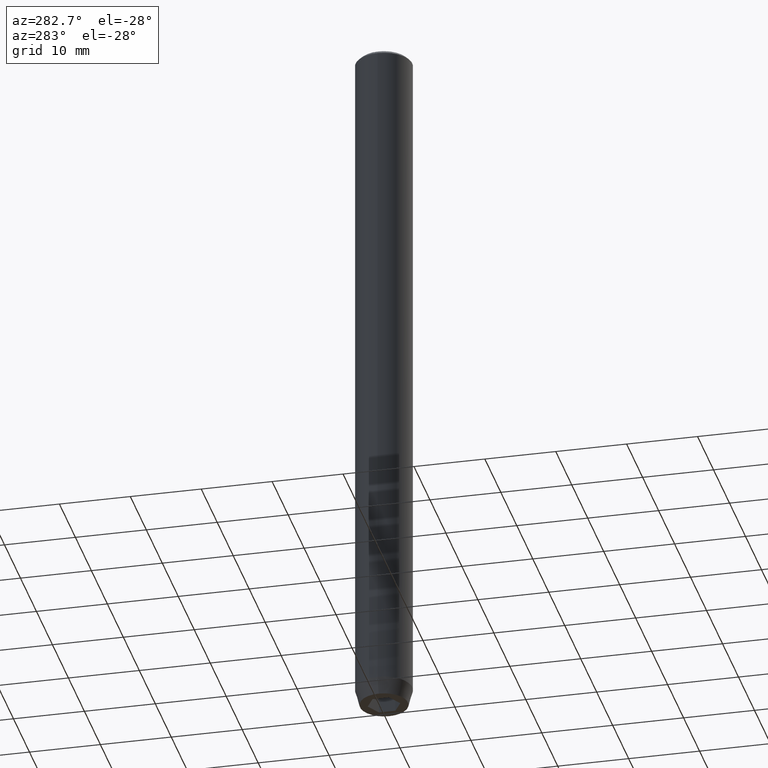
[diagram: clean part render]
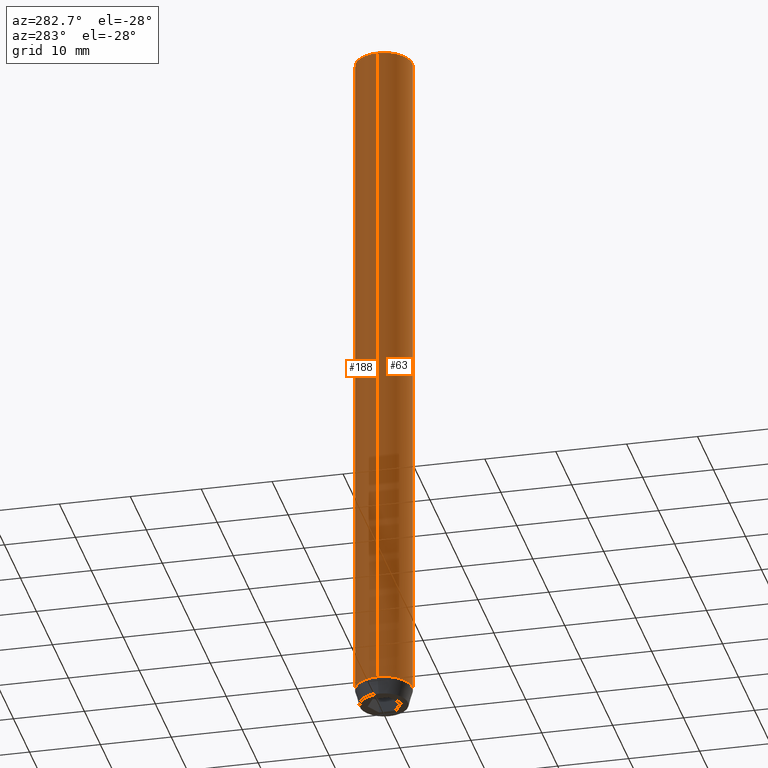
[diagram: same view with one multi-face feature highlighted, each face labeled with its STEP entity id]
A machine part, auxiliary view. The highlighted faces form ONE feature: a constant-radius fillet chain: 2 tangent blend faces with common blend radius 4 mm. The faces share edges in the B-rep.
Their STEP definitions:
[1] entity #63 (Cylinder):
#4 = EDGE_CURVE ( 'NONE', #224, #239, #467, .T. ) ;
#8 = VERTEX_POINT ( 'NONE', #33 ) ;
#14 = LINE ( 'NONE', #104, #549 ) ;
#33 = CARTESIAN_POINT ( 'NONE',  ( -4.000000000000000000, 4.898587196589412829E-16, -97.70000000000000284 ) ) ;
#48 = AXIS2_PLACEMENT_3D ( 'NONE', #159, #493, #521 ) ;
#62 = DIRECTION ( 'NONE',  ( -0.000000000000000000, -0.000000000000000000, 1.000000000000000000 ) ) ;
#63 = ADVANCED_FACE ( 'NONE', ( #163 ), #482, .T. ) ;
#71 = DIRECTION ( 'NONE',  ( -0.000000000000000000, -0.000000000000000000, 1.000000000000000000 ) ) ;
#104 = CARTESIAN_POINT ( 'NONE',  ( -4.000000000000000000, 4.898587196589412829E-16, 0.000000000000000000 ) ) ;
#142 = ORIENTED_EDGE ( 'NONE', *, *, #538, .F. ) ;
#145 = DIRECTION ( 'NONE',  ( -0.000000000000000000, -0.000000000000000000, 1.000000000000000000 ) ) ;
#155 = CARTESIAN_POINT ( 'NONE',  ( -4.000000000000000000, 4.898587196589412829E-16, -0.4999999999999970024 ) ) ;
#159 = CARTESIAN_POINT ( 'NONE',  ( 0.000000000000000000, 0.000000000000000000, -0.4999999999999970024 ) ) ;
#163 = FACE_OUTER_BOUND ( 'NONE', #416, .T. ) ;
#211 = LINE ( 'NONE', #563, #245 ) ;
#224 = VERTEX_POINT ( 'NONE', #376 ) ;
#239 = VERTEX_POINT ( 'NONE', #155 ) ;
#245 = VECTOR ( 'NONE', #252, 1000.000000000000000 ) ;
#252 = DIRECTION ( 'NONE',  ( -0.000000000000000000, -0.000000000000000000, 1.000000000000000000 ) ) ;
#254 = DIRECTION ( 'NONE',  ( 1.000000000000000000, 0.000000000000000000, 0.000000000000000000 ) ) ;
#270 = EDGE_CURVE ( 'NONE', #573, #224, #211, .T. ) ;
#290 = CIRCLE ( 'NONE', #506, 4.000000000000000000 ) ;
#328 = DIRECTION ( 'NONE',  ( 1.000000000000000000, 0.000000000000000000, 0.000000000000000000 ) ) ;
#339 = ORIENTED_EDGE ( 'NONE', *, *, #4, .T. ) ;
#359 = ORIENTED_EDGE ( 'NONE', *, *, #399, .T. ) ;
#376 = CARTESIAN_POINT ( 'NONE',  ( 4.000000000000000000, 0.000000000000000000, -0.4999999999999970024 ) ) ;
#399 = EDGE_CURVE ( 'NONE', #8, #573, #290, .T. ) ;
#416 = EDGE_LOOP ( 'NONE', ( #142, #359, #483, #339 ) ) ;
#458 = AXIS2_PLACEMENT_3D ( 'NONE', #525, #71, #254 ) ;
#467 = CIRCLE ( 'NONE', #48, 4.000000000000000000 ) ;
#482 = CYLINDRICAL_SURFACE ( 'NONE', #458, 4.000000000000000000 ) ;
#483 = ORIENTED_EDGE ( 'NONE', *, *, #270, .T. ) ;
#493 = DIRECTION ( 'NONE',  ( 0.000000000000000000, 0.000000000000000000, -1.000000000000000000 ) ) ;
#506 = AXIS2_PLACEMENT_3D ( 'NONE', #554, #145, #328 ) ;
#521 = DIRECTION ( 'NONE',  ( 1.000000000000000000, 0.000000000000000000, 0.000000000000000000 ) ) ;
#525 = CARTESIAN_POINT ( 'NONE',  ( 0.000000000000000000, 0.000000000000000000, 0.000000000000000000 ) ) ;
#538 = EDGE_CURVE ( 'NONE', #8, #239, #14, .T. ) ;
#549 = VECTOR ( 'NONE', #62, 1000.000000000000000 ) ;
#554 = CARTESIAN_POINT ( 'NONE',  ( 0.000000000000000000, 0.000000000000000000, -97.70000000000000284 ) ) ;
#563 = CARTESIAN_POINT ( 'NONE',  ( 4.000000000000000000, 0.000000000000000000, 0.000000000000000000 ) ) ;
#573 = VERTEX_POINT ( 'NONE', #574 ) ;
#574 = CARTESIAN_POINT ( 'NONE',  ( 4.000000000000000000, 0.000000000000000000, -97.70000000000000284 ) ) ;
[2] entity #188 (Cylinder):
#8 = VERTEX_POINT ( 'NONE', #33 ) ;
#14 = LINE ( 'NONE', #104, #549 ) ;
#30 = DIRECTION ( 'NONE',  ( 1.000000000000000000, 0.000000000000000000, 0.000000000000000000 ) ) ;
#33 = CARTESIAN_POINT ( 'NONE',  ( -4.000000000000000000, 4.898587196589412829E-16, -97.70000000000000284 ) ) ;
#44 = EDGE_CURVE ( 'NONE', #573, #8, #208, .T. ) ;
#49 = DIRECTION ( 'NONE',  ( 1.000000000000000000, 0.000000000000000000, 0.000000000000000000 ) ) ;
#62 = DIRECTION ( 'NONE',  ( -0.000000000000000000, -0.000000000000000000, 1.000000000000000000 ) ) ;
#104 = CARTESIAN_POINT ( 'NONE',  ( -4.000000000000000000, 4.898587196589412829E-16, 0.000000000000000000 ) ) ;
#106 = CARTESIAN_POINT ( 'NONE',  ( 0.000000000000000000, 0.000000000000000000, -97.70000000000000284 ) ) ;
#119 = ORIENTED_EDGE ( 'NONE', *, *, #44, .T. ) ;
#155 = CARTESIAN_POINT ( 'NONE',  ( -4.000000000000000000, 4.898587196589412829E-16, -0.4999999999999970024 ) ) ;
#157 = AXIS2_PLACEMENT_3D ( 'NONE', #106, #338, #30 ) ;
#160 = ORIENTED_EDGE ( 'NONE', *, *, #270, .F. ) ;
#166 = AXIS2_PLACEMENT_3D ( 'NONE', #539, #400, #49 ) ;
#178 = AXIS2_PLACEMENT_3D ( 'NONE', #490, #295, #485 ) ;
#188 = ADVANCED_FACE ( 'NONE', ( #266 ), #536, .T. ) ;
#208 = CIRCLE ( 'NONE', #157, 4.000000000000000000 ) ;
#211 = LINE ( 'NONE', #563, #245 ) ;
#224 = VERTEX_POINT ( 'NONE', #376 ) ;
#239 = VERTEX_POINT ( 'NONE', #155 ) ;
#245 = VECTOR ( 'NONE', #252, 1000.000000000000000 ) ;
#252 = DIRECTION ( 'NONE',  ( -0.000000000000000000, -0.000000000000000000, 1.000000000000000000 ) ) ;
#266 = FACE_OUTER_BOUND ( 'NONE', #409, .T. ) ;
#270 = EDGE_CURVE ( 'NONE', #573, #224, #211, .T. ) ;
#285 = ORIENTED_EDGE ( 'NONE', *, *, #538, .T. ) ;
#295 = DIRECTION ( 'NONE',  ( 0.000000000000000000, 0.000000000000000000, -1.000000000000000000 ) ) ;
#299 = EDGE_CURVE ( 'NONE', #239, #224, #491, .T. ) ;
#338 = DIRECTION ( 'NONE',  ( -0.000000000000000000, -0.000000000000000000, 1.000000000000000000 ) ) ;
#376 = CARTESIAN_POINT ( 'NONE',  ( 4.000000000000000000, 0.000000000000000000, -0.4999999999999970024 ) ) ;
#400 = DIRECTION ( 'NONE',  ( -0.000000000000000000, -0.000000000000000000, 1.000000000000000000 ) ) ;
#409 = EDGE_LOOP ( 'NONE', ( #119, #285, #512, #160 ) ) ;
#485 = DIRECTION ( 'NONE',  ( 1.000000000000000000, 0.000000000000000000, 0.000000000000000000 ) ) ;
#490 = CARTESIAN_POINT ( 'NONE',  ( 0.000000000000000000, 0.000000000000000000, -0.4999999999999970024 ) ) ;
#491 = CIRCLE ( 'NONE', #178, 4.000000000000000000 ) ;
#512 = ORIENTED_EDGE ( 'NONE', *, *, #299, .T. ) ;
#536 = CYLINDRICAL_SURFACE ( 'NONE', #166, 4.000000000000000000 ) ;
#538 = EDGE_CURVE ( 'NONE', #8, #239, #14, .T. ) ;
#539 = CARTESIAN_POINT ( 'NONE',  ( 0.000000000000000000, 0.000000000000000000, 0.000000000000000000 ) ) ;
#549 = VECTOR ( 'NONE', #62, 1000.000000000000000 ) ;
#563 = CARTESIAN_POINT ( 'NONE',  ( 4.000000000000000000, 0.000000000000000000, 0.000000000000000000 ) ) ;
#573 = VERTEX_POINT ( 'NONE', #574 ) ;
#574 = CARTESIAN_POINT ( 'NONE',  ( 4.000000000000000000, 0.000000000000000000, -97.70000000000000284 ) ) ;